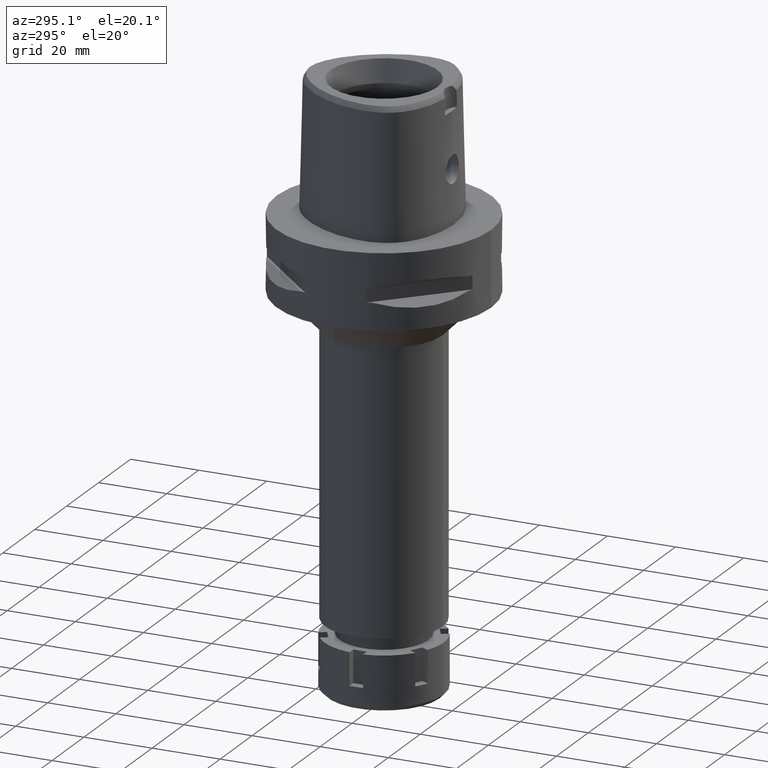
[diagram: clean part render]
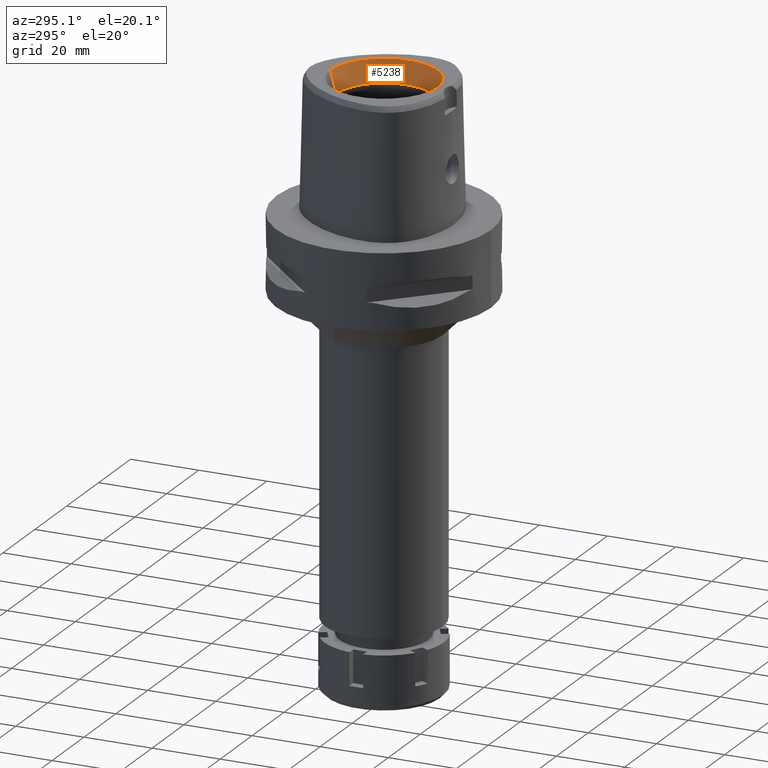
[diagram: same view with one face highlighted and labeled with its STEP entity id]
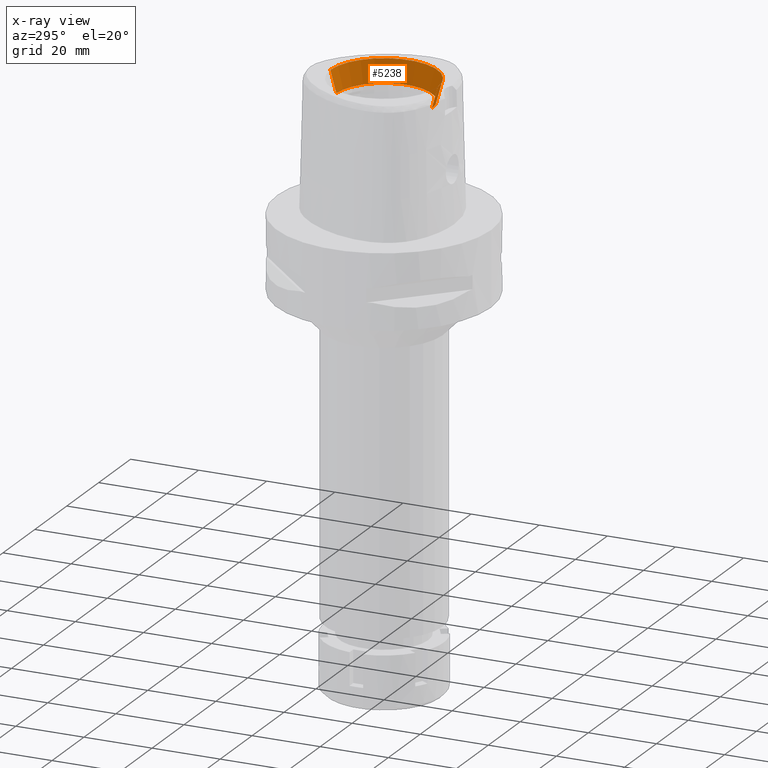
[diagram: x-ray of the same camera — body ghosted, the highlighted face saturated]
A machine part, auxiliary view. The second image highlights one B-rep face of the part: STEP entity #5238.
The next image is the same camera in x-ray: the body ghosted, the highlighted face saturated — about 0% of this face is hidden behind the body in this view.
In plain terms, the highlighted conical surface has half-angle 15 deg.
Its self-contained STEP definition (entity closure, byte-faithful):
#81 = DIRECTION ( 'NONE',  ( 0.0000000000000000000, 1.000000000000000000, 0.0000000000000000000 ) ) ;
#309 = LINE ( 'NONE', #3249, #631 ) ;
#333 = CONICAL_SURFACE ( 'NONE', #2340, 14.85743741577999977, 0.2617993877991000029 ) ;
#568 = EDGE_CURVE ( 'NONE', #2370, #3938, #4851, .T. ) ;
#604 = EDGE_CURVE ( 'NONE', #3938, #1716, #309, .T. ) ;
#631 = VECTOR ( 'NONE', #2430, 1000.000000000000000 ) ;
#814 = DIRECTION ( 'NONE',  ( 0.0000000000000000000, 0.0000000000000000000, 1.000000000000000000 ) ) ;
#1166 = VERTEX_POINT ( 'NONE', #2182 ) ;
#1329 = VECTOR ( 'NONE', #5418, 1000.000000000000000 ) ;
#1429 = CIRCLE ( 'NONE', #2152, 15.71487483155999776 ) ;
#1716 = VERTEX_POINT ( 'NONE', #2802 ) ;
#1833 = DIRECTION ( 'NONE',  ( 0.0000000000000000000, 0.0000000000000000000, 1.000000000000000000 ) ) ;
#1986 = LINE ( 'NONE', #4991, #1329 ) ;
#2029 = DIRECTION ( 'NONE',  ( 0.0000000000000000000, 0.0000000000000000000, 1.000000000000000000 ) ) ;
#2105 = DIRECTION ( 'NONE',  ( 0.0000000000000000000, -1.000000000000000000, 0.0000000000000000000 ) ) ;
#2152 = AXIS2_PLACEMENT_3D ( 'NONE', #3824, #814, #2105 ) ;
#2182 = CARTESIAN_POINT ( 'NONE',  ( 0.0000000000000000000, -15.71487483155999776, 38.00000000000000000 ) ) ;
#2319 = ORIENTED_EDGE ( 'NONE', *, *, #2875, .T. ) ;
#2340 = AXIS2_PLACEMENT_3D ( 'NONE', #5181, #1833, #81 ) ;
#2345 = ORIENTED_EDGE ( 'NONE', *, *, #604, .F. ) ;
#2370 = VERTEX_POINT ( 'NONE', #4733 ) ;
#2430 = DIRECTION ( 'NONE',  ( 0.0000000000000000000, 0.2588190451025869088, 0.9659258262890505486 ) ) ;
#2802 = CARTESIAN_POINT ( 'NONE',  ( 0.0000000000000000000, 15.71487483155999776, 38.00000000000000000 ) ) ;
#2875 = EDGE_CURVE ( 'NONE', #1166, #1716, #1429, .T. ) ;
#2911 = CARTESIAN_POINT ( 'NONE',  ( 0.0000000000000000000, 0.0000000000000000000, 31.60000000000000142 ) ) ;
#3086 = AXIS2_PLACEMENT_3D ( 'NONE', #2911, #2029, #4579 ) ;
#3249 = CARTESIAN_POINT ( 'NONE',  ( 0.0000000000000000000, 14.00000000000000000, 31.60000000000000142 ) ) ;
#3731 = EDGE_CURVE ( 'NONE', #2370, #1166, #1986, .T. ) ;
#3824 = CARTESIAN_POINT ( 'NONE',  ( 0.0000000000000000000, 0.0000000000000000000, 38.00000000000000000 ) ) ;
#3828 = EDGE_LOOP ( 'NONE', ( #2345, #4527, #5282, #2319 ) ) ;
#3938 = VERTEX_POINT ( 'NONE', #5496 ) ;
#3977 = FACE_OUTER_BOUND ( 'NONE', #3828, .T. ) ;
#4527 = ORIENTED_EDGE ( 'NONE', *, *, #568, .F. ) ;
#4579 = DIRECTION ( 'NONE',  ( 0.0000000000000000000, -1.000000000000000000, 0.0000000000000000000 ) ) ;
#4733 = CARTESIAN_POINT ( 'NONE',  ( 0.0000000000000000000, -14.00000000000000000, 31.60000000000000142 ) ) ;
#4851 = CIRCLE ( 'NONE', #3086, 14.00000000000000000 ) ;
#4991 = CARTESIAN_POINT ( 'NONE',  ( 0.0000000000000000000, -14.00000000000000000, 31.60000000000000142 ) ) ;
#5181 = CARTESIAN_POINT ( 'NONE',  ( 0.0000000000000000000, 0.0000000000000000000, 34.79999999999999716 ) ) ;
#5238 = ADVANCED_FACE ( 'NONE', ( #3977 ), #333, .F. ) ;
#5282 = ORIENTED_EDGE ( 'NONE', *, *, #3731, .T. ) ;
#5418 = DIRECTION ( 'NONE',  ( 0.0000000000000000000, -0.2588190451025869088, 0.9659258262890505486 ) ) ;
#5496 = CARTESIAN_POINT ( 'NONE',  ( 0.0000000000000000000, 14.00000000000000000, 31.60000000000000142 ) ) ;